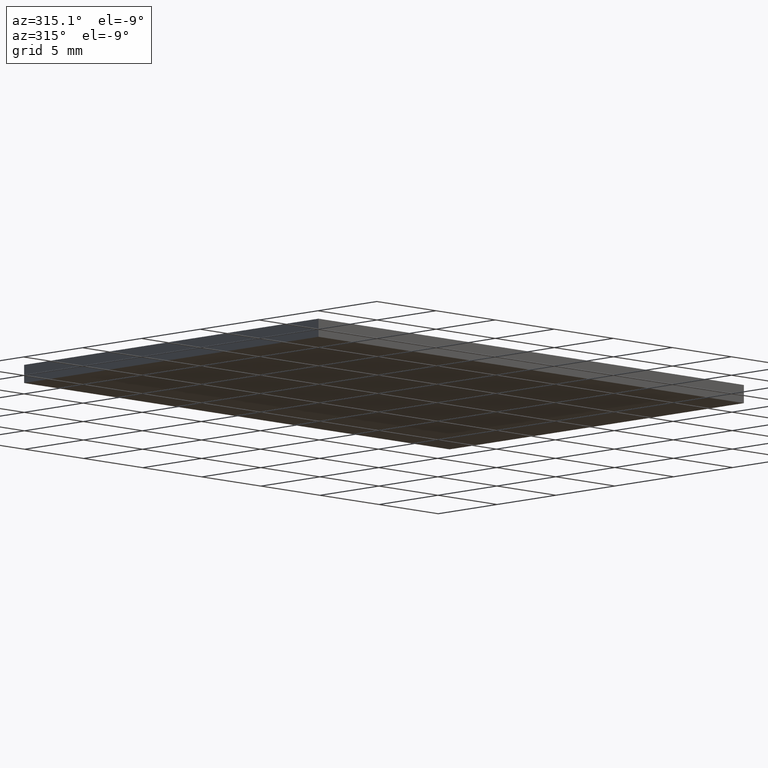
[diagram: clean part render]
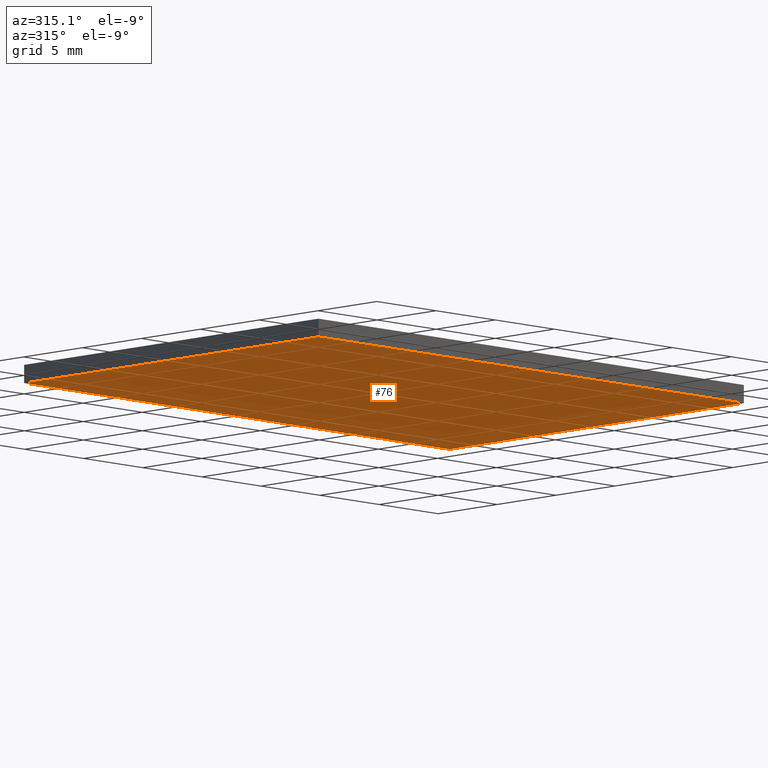
[diagram: same view with one face highlighted and labeled with its STEP entity id]
A machine part, auxiliary view. The second image highlights one B-rep face of the part: STEP entity #76.
In plain terms, the highlighted planar face has unit normal (0, 0, -1).
Its self-contained STEP definition (entity closure, byte-faithful):
#4 = ORIENTED_EDGE ( 'NONE', *, *, #72, .F. ) ;
#6 = PLANE ( 'NONE',  #95 ) ;
#7 = CARTESIAN_POINT ( 'NONE',  ( 0.000000000000000000, 0.000000000000000000, 0.000000000000000000 ) ) ;
#8 = CARTESIAN_POINT ( 'NONE',  ( 0.000000000000000000, 0.000000000000000000, 0.000000000000000000 ) ) ;
#11 = EDGE_LOOP ( 'NONE', ( #175, #4, #33, #118 ) ) ;
#17 = CARTESIAN_POINT ( 'NONE',  ( 0.000000000000000000, 0.000000000000000000, 0.000000000000000000 ) ) ;
#20 = VERTEX_POINT ( 'NONE', #109 ) ;
#24 = LINE ( 'NONE', #8, #113 ) ;
#30 = DIRECTION ( 'NONE',  ( 0.000000000000000000, 1.000000000000000000, 0.000000000000000000 ) ) ;
#31 = VERTEX_POINT ( 'NONE', #17 ) ;
#33 = ORIENTED_EDGE ( 'NONE', *, *, #182, .F. ) ;
#42 = LINE ( 'NONE', #117, #141 ) ;
#45 = VERTEX_POINT ( 'NONE', #197 ) ;
#48 = DIRECTION ( 'NONE',  ( -1.000000000000000000, 0.000000000000000000, -0.000000000000000000 ) ) ;
#49 = LINE ( 'NONE', #142, #186 ) ;
#53 = EDGE_CURVE ( 'NONE', #31, #157, #24, .T. ) ;
#72 = EDGE_CURVE ( 'NONE', #45, #20, #49, .T. ) ;
#76 = ADVANCED_FACE ( 'NONE', ( #110 ), #6, .T. ) ;
#95 = AXIS2_PLACEMENT_3D ( 'NONE', #7, #143, #48 ) ;
#102 = CARTESIAN_POINT ( 'NONE',  ( 0.000000000000000000, 0.000000000000000000, 0.000000000000000000 ) ) ;
#109 = CARTESIAN_POINT ( 'NONE',  ( 0.000000000000000000, 25.00000000000000000, 0.000000000000000000 ) ) ;
#110 = FACE_OUTER_BOUND ( 'NONE', #11, .T. ) ;
#113 = VECTOR ( 'NONE', #127, 1000.000000000000000 ) ;
#117 = CARTESIAN_POINT ( 'NONE',  ( 36.00000000000000000, 0.000000000000000000, 0.000000000000000000 ) ) ;
#118 = ORIENTED_EDGE ( 'NONE', *, *, #53, .F. ) ;
#127 = DIRECTION ( 'NONE',  ( 1.000000000000000000, 0.000000000000000000, 0.000000000000000000 ) ) ;
#141 = VECTOR ( 'NONE', #30, 1000.000000000000000 ) ;
#142 = CARTESIAN_POINT ( 'NONE',  ( 0.000000000000000000, 25.00000000000000000, 0.000000000000000000 ) ) ;
#143 = DIRECTION ( 'NONE',  ( 0.000000000000000000, 0.000000000000000000, -1.000000000000000000 ) ) ;
#147 = VECTOR ( 'NONE', #180, 1000.000000000000000 ) ;
#157 = VERTEX_POINT ( 'NONE', #179 ) ;
#170 = EDGE_CURVE ( 'NONE', #20, #31, #176, .T. ) ;
#175 = ORIENTED_EDGE ( 'NONE', *, *, #170, .F. ) ;
#176 = LINE ( 'NONE', #102, #147 ) ;
#179 = CARTESIAN_POINT ( 'NONE',  ( 36.00000000000000000, 0.000000000000000000, 0.000000000000000000 ) ) ;
#180 = DIRECTION ( 'NONE',  ( -0.000000000000000000, -1.000000000000000000, -0.000000000000000000 ) ) ;
#182 = EDGE_CURVE ( 'NONE', #157, #45, #42, .T. ) ;
#186 = VECTOR ( 'NONE', #194, 1000.000000000000000 ) ;
#194 = DIRECTION ( 'NONE',  ( -1.000000000000000000, -0.000000000000000000, -0.000000000000000000 ) ) ;
#197 = CARTESIAN_POINT ( 'NONE',  ( 36.00000000000000000, 25.00000000000000000, 0.000000000000000000 ) ) ;